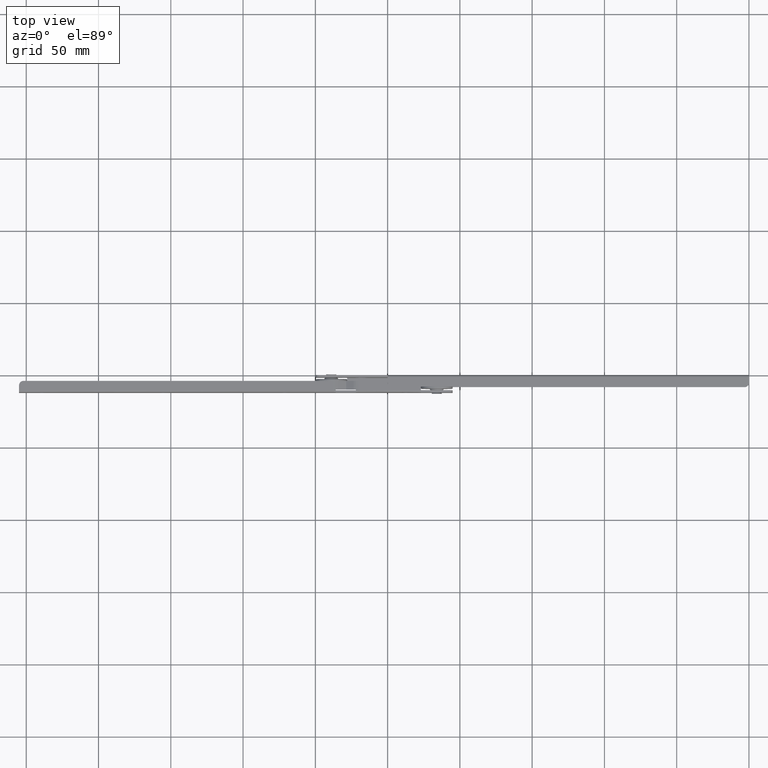
[diagram: clean part render]
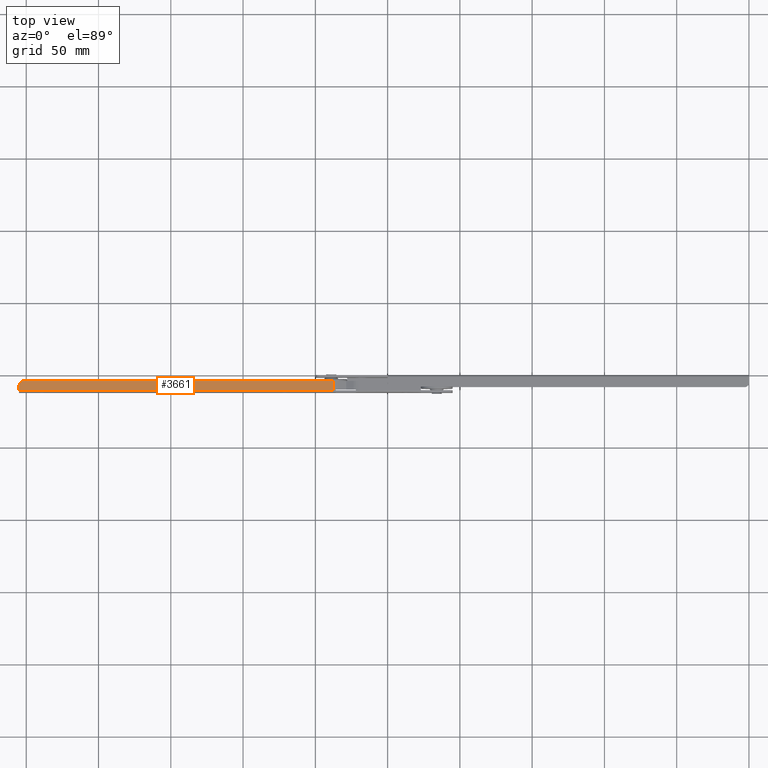
[diagram: same view with one face highlighted and labeled with its STEP entity id]
A machine part, top view. The second image highlights one B-rep face of the part: STEP entity #3661.
In plain terms, the highlighted face is a freeform B-spline surface patch.
Its self-contained STEP definition (entity closure, byte-faithful):
#2649=CARTESIAN_POINT('',(12.159928015560860,-4.0,7.347638E-016));
#2650=VERTEX_POINT('',#2649);
#2666=CARTESIAN_POINT('',(12.159928015560860,-10.400000000000000,1.910386E-015));
#2667=VERTEX_POINT('',#2666);
#2668=CARTESIAN_POINT('',(12.159928015560860,-10.400000000000000,1.910386E-015));
#2669=CARTESIAN_POINT('',(12.159928015560860,-4.0,7.347638E-016));
#2670=QUASI_UNIFORM_CURVE('',1,(#2668,#2669),.UNSPECIFIED.,.F.,.U.);
#2671=EDGE_CURVE('',#2667,#2650,#2670,.T.);
#3297=CARTESIAN_POINT('',(-205.0,-7.0,1.285837E-015));
#3298=VERTEX_POINT('',#3297);
#3304=CARTESIAN_POINT('',(-202.0,-4.0,7.347638E-016));
#3305=VERTEX_POINT('',#3304);
#3306=CARTESIAN_POINT('',(-202.0,-4.0,1.301043E-015));
#3307=CARTESIAN_POINT('',(-205.000000000000090,-4.000000000000000,1.301043E-015));
#3308=CARTESIAN_POINT('',(-205.0,-7.0,1.301043E-015));
#3316=(BOUNDED_CURVE()B_SPLINE_CURVE(2,(#3306,#3307,#3308),.UNSPECIFIED.,.F.,.U.)CURVE()GEOMETRIC_REPRESENTATION_ITEM()QUASI_UNIFORM_CURVE()RATIONAL_B_SPLINE_CURVE((1.0,0.707106781186548,1.0))REPRESENTATION_ITEM(''));
#3317=EDGE_CURVE('',#3305,#3298,#3316,.T.);
#3471=CARTESIAN_POINT('',(-205.0,-10.400000000000000,1.910386E-015));
#3472=VERTEX_POINT('',#3471);
#3486=CARTESIAN_POINT('',(-205.0,-7.0,1.285837E-015));
#3487=CARTESIAN_POINT('',(-205.0,-10.400000000000000,1.910386E-015));
#3488=QUASI_UNIFORM_CURVE('',1,(#3486,#3487),.UNSPECIFIED.,.F.,.U.);
#3489=EDGE_CURVE('',#3298,#3472,#3488,.T.);
#3614=CARTESIAN_POINT('',(12.159928015560860,-10.400000000000000,1.910386E-015));
#3615=CARTESIAN_POINT('',(-205.0,-10.400000000000000,1.910386E-015));
#3616=QUASI_UNIFORM_CURVE('',1,(#3614,#3615),.UNSPECIFIED.,.F.,.U.);
#3617=EDGE_CURVE('',#2667,#3472,#3616,.T.);
#3645=CARTESIAN_POINT('',(-215.847137983479200,-10.719679627123840,7.347638E-016));
#3646=CARTESIAN_POINT('',(-215.847137983479200,-3.680319857892037,7.347638E-016));
#3647=CARTESIAN_POINT('',(23.007071823723219,-10.719679627123840,7.347638E-016));
#3648=CARTESIAN_POINT('',(23.007071823723219,-3.680319857892037,7.347638E-016));
#3649=B_SPLINE_SURFACE_WITH_KNOTS('',1,1,((#3645,#3647),(#3646,#3648)),.UNSPECIFIED.,.F.,.F.,.U.,(2,2),(2,2),(0.0,7.039359769231798),(0.0,238.854209807202410),.UNSPECIFIED.);
#3650=ORIENTED_EDGE('',*,*,#3617,.F.);
#3651=ORIENTED_EDGE('',*,*,#2671,.T.);
#3652=CARTESIAN_POINT('',(12.159928015560860,-4.0,7.347638E-016));
#3653=CARTESIAN_POINT('',(-202.0,-4.0,7.347638E-016));
#3654=QUASI_UNIFORM_CURVE('',1,(#3652,#3653),.UNSPECIFIED.,.F.,.U.);
#3655=EDGE_CURVE('',#2650,#3305,#3654,.T.);
#3656=ORIENTED_EDGE('',*,*,#3655,.T.);
#3657=ORIENTED_EDGE('',*,*,#3317,.T.);
#3658=ORIENTED_EDGE('',*,*,#3489,.T.);
#3659=EDGE_LOOP('',(#3650,#3651,#3656,#3657,#3658));
#3660=FACE_OUTER_BOUND('',#3659,.T.);
#3661=ADVANCED_FACE('',(#3660),#3649,.F.);